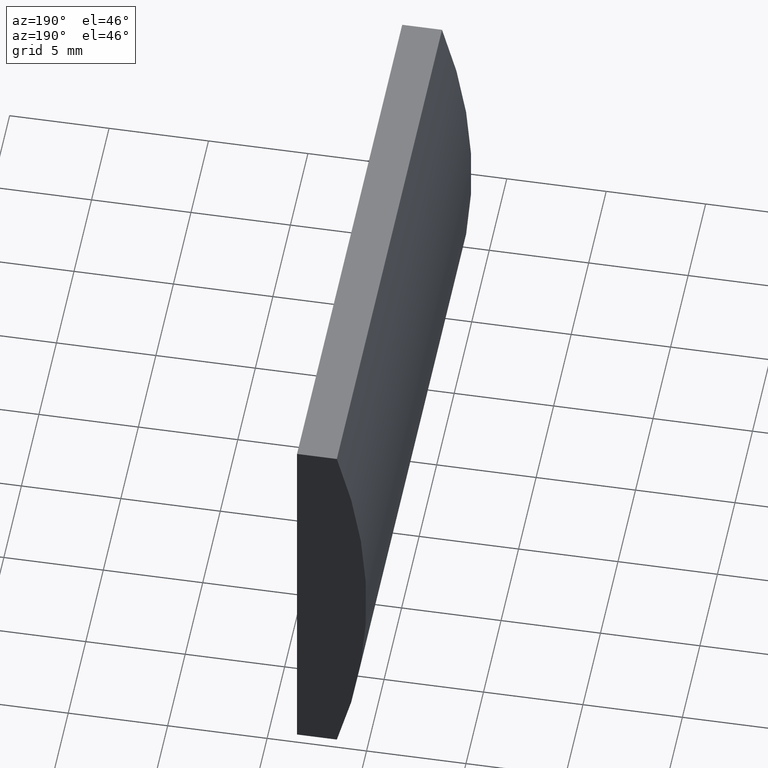
[diagram: clean part render]
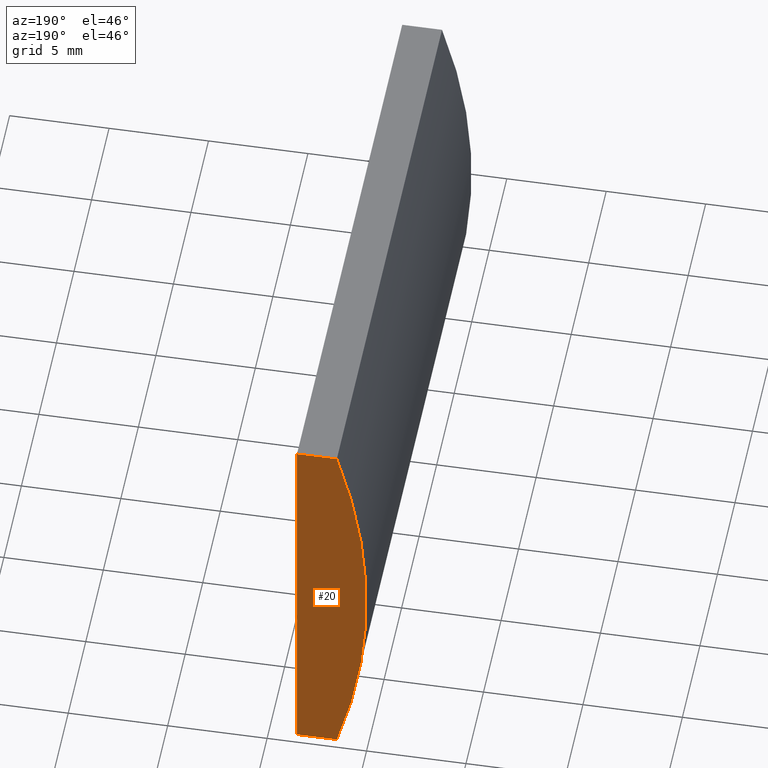
[diagram: same view with one face highlighted and labeled with its STEP entity id]
A machine part, auxiliary view. The second image highlights one B-rep face of the part: STEP entity #20.
In plain terms, the highlighted planar face has unit normal (0, 1, 0).
Its self-contained STEP definition (entity closure, byte-faithful):
#5 = EDGE_CURVE ( 'NONE', #201, #67, #160, .T. ) ;
#9 = CARTESIAN_POINT ( 'NONE',  ( 4.355204334851265500, 30.00000000000000000, 4.286263797015675000E-017 ) ) ;
#20 = ADVANCED_FACE ( 'NONE', ( #121 ), #193, .T. ) ;
#25 = VERTEX_POINT ( 'NONE', #63 ) ;
#28 = VECTOR ( 'NONE', #49, 1000.000000000000000 ) ;
#31 = ORIENTED_EDGE ( 'NONE', *, *, #5, .T. ) ;
#41 = CARTESIAN_POINT ( 'NONE',  ( -28.50696996935446800, 30.00000000000000000, -10.00000000000000000 ) ) ;
#43 = CARTESIAN_POINT ( 'NONE',  ( 4.355204334851265500, 30.00000000000000000, 4.286263797015675000E-017 ) ) ;
#49 = DIRECTION ( 'NONE',  ( 1.000000000000000000, 0.0000000000000000000, 0.0000000000000000000 ) ) ;
#57 = DIRECTION ( 'NONE',  ( 0.0000000000000000000, 1.000000000000000000, 0.0000000000000000000 ) ) ;
#63 = CARTESIAN_POINT ( 'NONE',  ( -28.50696996935446800, 30.00000000000000000, 10.00000000000000000 ) ) ;
#67 = VERTEX_POINT ( 'NONE', #89 ) ;
#74 = VECTOR ( 'NONE', #81, 1000.000000000000000 ) ;
#78 = DIRECTION ( 'NONE',  ( -1.000000000000000000, -0.0000000000000000000, -0.0000000000000000000 ) ) ;
#79 = DIRECTION ( 'NONE',  ( 0.0000000000000000000, 1.000000000000000000, 0.0000000000000000000 ) ) ;
#81 = DIRECTION ( 'NONE',  ( -3.469446951953614200E-016, -0.0000000000000000000, -1.000000000000000000 ) ) ;
#89 = CARTESIAN_POINT ( 'NONE',  ( -28.50696996935446800, 30.00000000000000000, -10.00000000000000000 ) ) ;
#93 = ORIENTED_EDGE ( 'NONE', *, *, #117, .T. ) ;
#95 = EDGE_CURVE ( 'NONE', #25, #153, #119, .T. ) ;
#114 = AXIS2_PLACEMENT_3D ( 'NONE', #9, #79, #118 ) ;
#115 = DIRECTION ( 'NONE',  ( 0.0000000000000000000, 0.0000000000000000000, 1.000000000000000000 ) ) ;
#117 = EDGE_CURVE ( 'NONE', #153, #201, #200, .T. ) ;
#118 = DIRECTION ( 'NONE',  ( 0.0000000000000000000, -0.0000000000000000000, 1.000000000000000000 ) ) ;
#119 = LINE ( 'NONE', #156, #28 ) ;
#121 = FACE_OUTER_BOUND ( 'NONE', #134, .T. ) ;
#124 = CARTESIAN_POINT ( 'NONE',  ( -26.50479566514873000, 30.00000000000000000, 10.00000000000000000 ) ) ;
#134 = EDGE_LOOP ( 'NONE', ( #187, #142, #93, #31 ) ) ;
#142 = ORIENTED_EDGE ( 'NONE', *, *, #95, .T. ) ;
#153 = VERTEX_POINT ( 'NONE', #124 ) ;
#154 = CARTESIAN_POINT ( 'NONE',  ( -26.50479566514873800, 30.00000000000000000, -10.00000000000000000 ) ) ;
#156 = CARTESIAN_POINT ( 'NONE',  ( -28.50696996935446800, 30.00000000000000000, 10.00000000000000000 ) ) ;
#159 = VECTOR ( 'NONE', #78, 1000.000000000000000 ) ;
#160 = LINE ( 'NONE', #41, #159 ) ;
#169 = AXIS2_PLACEMENT_3D ( 'NONE', #43, #57, #115 ) ;
#173 = CIRCLE ( 'NONE', #169, 34.34999999999999400 ) ;
#180 = CARTESIAN_POINT ( 'NONE',  ( -26.50479566514873800, 30.00000000000000000, -10.00000000000000000 ) ) ;
#187 = ORIENTED_EDGE ( 'NONE', *, *, #195, .T. ) ;
#193 = PLANE ( 'NONE',  #114 ) ;
#195 = EDGE_CURVE ( 'NONE', #67, #25, #173, .T. ) ;
#200 = LINE ( 'NONE', #180, #74 ) ;
#201 = VERTEX_POINT ( 'NONE', #154 ) ;